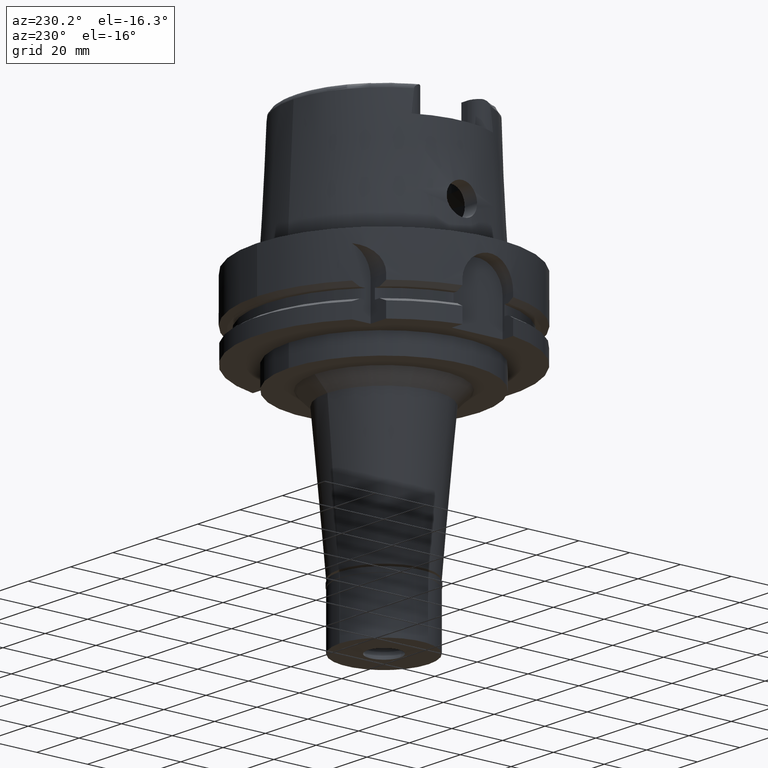
[diagram: clean part render]
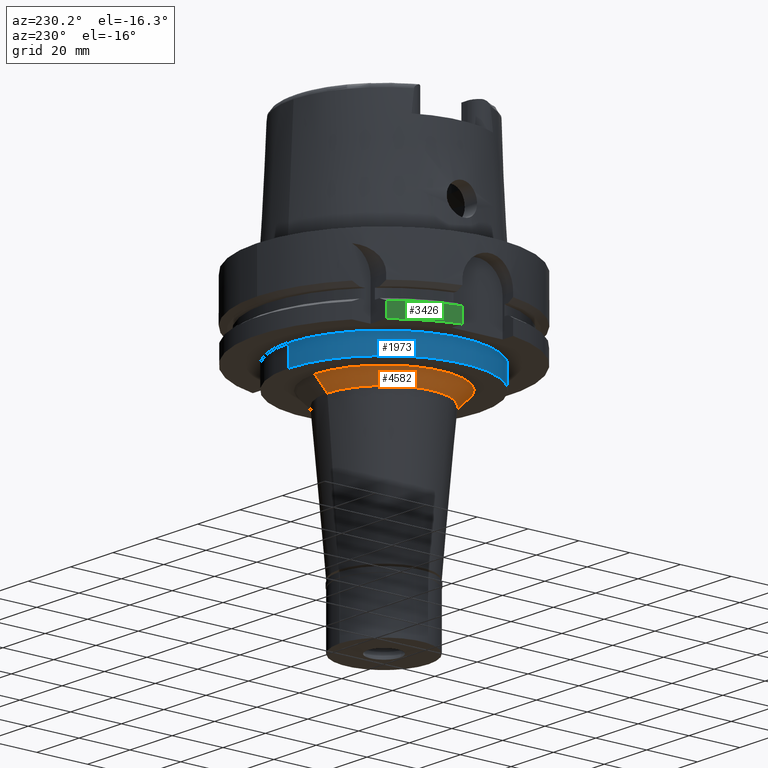
[diagram: same view with three faces highlighted in distinct colors, each labeled with its STEP entity id]
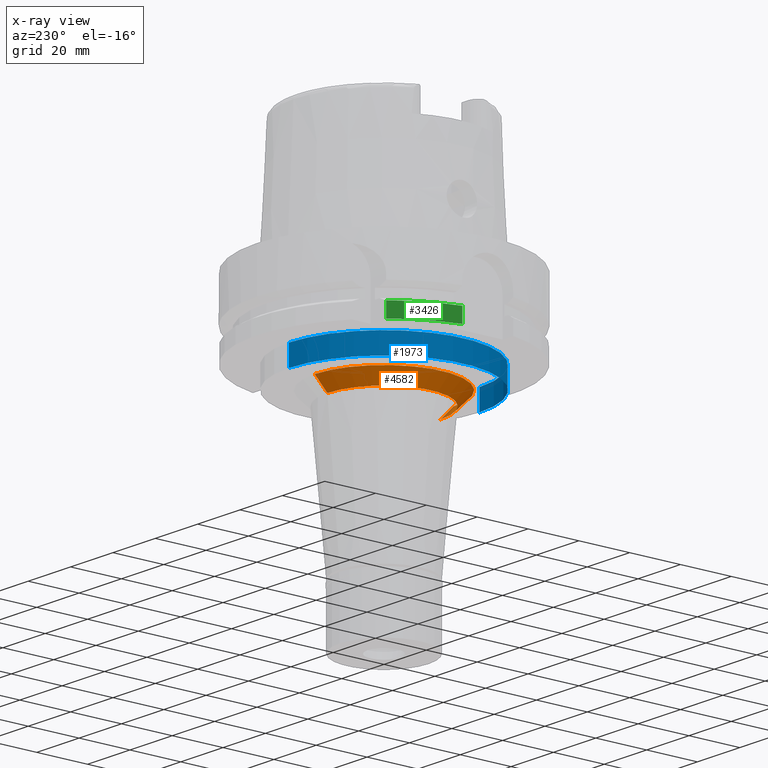
[diagram: x-ray of the same camera — body ghosted, the three highlighted faces saturated]
A machine part, auxiliary view with three faces highlighted in distinct colors.
The next image is the same camera in x-ray (body ghosted, the three faces saturated) — at least one of them is partly hidden behind the body in this view.
Their STEP definitions:

[orange] entity #4582 — the highlighted conical surface has half-angle 45 deg.
#98 = DIRECTION ( 'NONE',  ( 0.0000000000000000000, 0.7071067811867980391, -0.7071067811862969954 ) ) ;
#182 = ORIENTED_EDGE ( 'NONE', *, *, #2387, .F. ) ;
#212 = EDGE_CURVE ( 'NONE', #3439, #3825, #4492, .T. ) ;
#441 = LINE ( 'NONE', #471, #3196 ) ;
#469 = EDGE_CURVE ( 'NONE', #3825, #1617, #2747, .T. ) ;
#471 = CARTESIAN_POINT ( 'NONE',  ( 0.0000000000000000000, -27.28562989486999868, -37.00000000000000000 ) ) ;
#751 = CARTESIAN_POINT ( 'NONE',  ( 0.0000000000000000000, 27.28562989486999868, -37.00000000000000000 ) ) ;
#899 = AXIS2_PLACEMENT_3D ( 'NONE', #4873, #4391, #1416 ) ;
#919 = EDGE_CURVE ( 'NONE', #1463, #1617, #4118, .T. ) ;
#1094 = ORIENTED_EDGE ( 'NONE', *, *, #469, .T. ) ;
#1188 = CARTESIAN_POINT ( 'NONE',  ( 0.0000000000000000000, 0.0000000000000000000, -37.00000000000000000 ) ) ;
#1211 = CARTESIAN_POINT ( 'NONE',  ( 0.0000000000000000000, -22.28562989487000223, -42.00000000000000000 ) ) ;
#1416 = DIRECTION ( 'NONE',  ( 0.0000000000000000000, -1.000000000000000000, 0.0000000000000000000 ) ) ;
#1441 = AXIS2_PLACEMENT_3D ( 'NONE', #1188, #4654, #3889 ) ;
#1463 = VERTEX_POINT ( 'NONE', #1211 ) ;
#1617 = VERTEX_POINT ( 'NONE', #5252 ) ;
#1725 = ORIENTED_EDGE ( 'NONE', *, *, #212, .T. ) ;
#1750 = DIRECTION ( 'NONE',  ( 0.0000000000000000000, 0.0000000000000000000, 1.000000000000000000 ) ) ;
#2166 = CARTESIAN_POINT ( 'NONE',  ( 0.0000000000000000000, -27.28562989486999868, -37.00000000000000000 ) ) ;
#2387 = EDGE_CURVE ( 'NONE', #3439, #1463, #441, .T. ) ;
#2624 = VECTOR ( 'NONE', #3572, 1000.000000000000000 ) ;
#2747 = LINE ( 'NONE', #3497, #2624 ) ;
#3031 = ORIENTED_EDGE ( 'NONE', *, *, #919, .F. ) ;
#3196 = VECTOR ( 'NONE', #98, 1000.000000000000000 ) ;
#3439 = VERTEX_POINT ( 'NONE', #2166 ) ;
#3494 = DIRECTION ( 'NONE',  ( 0.0000000000000000000, 1.000000000000000000, 0.0000000000000000000 ) ) ;
#3497 = CARTESIAN_POINT ( 'NONE',  ( 0.0000000000000000000, 27.28562989486999868, -37.00000000000000000 ) ) ;
#3544 = CARTESIAN_POINT ( 'NONE',  ( 0.0000000000000000000, 0.0000000000000000000, -39.50000000000000000 ) ) ;
#3572 = DIRECTION ( 'NONE',  ( 0.0000000000000000000, -0.7071067811867980391, -0.7071067811862969954 ) ) ;
#3825 = VERTEX_POINT ( 'NONE', #751 ) ;
#3889 = DIRECTION ( 'NONE',  ( 0.0000000000000000000, -1.000000000000000000, 0.0000000000000000000 ) ) ;
#4118 = CIRCLE ( 'NONE', #899, 22.28562989487000223 ) ;
#4320 = EDGE_LOOP ( 'NONE', ( #3031, #182, #1725, #1094 ) ) ;
#4391 = DIRECTION ( 'NONE',  ( 0.0000000000000000000, 0.0000000000000000000, -1.000000000000000000 ) ) ;
#4421 = CONICAL_SURFACE ( 'NONE', #4619, 24.78562989487000223, 0.7853981633972997312 ) ;
#4492 = CIRCLE ( 'NONE', #1441, 27.28562989486999868 ) ;
#4582 = ADVANCED_FACE ( 'NONE', ( #4733 ), #4421, .T. ) ;
#4619 = AXIS2_PLACEMENT_3D ( 'NONE', #3544, #1750, #3494 ) ;
#4654 = DIRECTION ( 'NONE',  ( 0.0000000000000000000, 0.0000000000000000000, -1.000000000000000000 ) ) ;
#4733 = FACE_OUTER_BOUND ( 'NONE', #4320, .T. ) ;
#4873 = CARTESIAN_POINT ( 'NONE',  ( 0.0000000000000000000, 0.0000000000000000000, -42.00000000000000000 ) ) ;
#5252 = CARTESIAN_POINT ( 'NONE',  ( 0.0000000000000000000, 22.28562989487000223, -42.00000000000000000 ) ) ;

[blue] entity #1973 — the highlighted cylindrical surface (partial cylindrical patch) has radius 37.5 mm, axis along (0, 0, 1).
#86 = VECTOR ( 'NONE', #299, 1000.000000000000000 ) ;
#299 = DIRECTION ( 'NONE',  ( 0.0000000000000000000, 0.0000000000000000000, -1.000000000000000000 ) ) ;
#438 = VERTEX_POINT ( 'NONE', #2263 ) ;
#476 = FACE_OUTER_BOUND ( 'NONE', #2490, .T. ) ;
#507 = CARTESIAN_POINT ( 'NONE',  ( 0.0000000000000000000, 37.50000000000000000, -29.00000000000000000 ) ) ;
#754 = CARTESIAN_POINT ( 'NONE',  ( 0.0000000000000000000, -37.50000000000000000, -29.00000000000000000 ) ) ;
#778 = AXIS2_PLACEMENT_3D ( 'NONE', #1671, #2613, #3448 ) ;
#915 = ORIENTED_EDGE ( 'NONE', *, *, #2891, .T. ) ;
#997 = AXIS2_PLACEMENT_3D ( 'NONE', #3900, #2171, #3457 ) ;
#1015 = VERTEX_POINT ( 'NONE', #1389 ) ;
#1076 = EDGE_CURVE ( 'NONE', #4695, #1015, #1117, .T. ) ;
#1117 = LINE ( 'NONE', #754, #86 ) ;
#1260 = ORIENTED_EDGE ( 'NONE', *, *, #5377, .T. ) ;
#1389 = CARTESIAN_POINT ( 'NONE',  ( 0.0000000000000000000, -37.50000000000000000, -37.00000000000000000 ) ) ;
#1671 = CARTESIAN_POINT ( 'NONE',  ( 0.0000000000000000000, 0.0000000000000000000, -37.00000000000000000 ) ) ;
#1937 = VERTEX_POINT ( 'NONE', #507 ) ;
#1973 = ADVANCED_FACE ( 'NONE', ( #476 ), #2598, .T. ) ;
#2150 = ORIENTED_EDGE ( 'NONE', *, *, #2997, .T. ) ;
#2171 = DIRECTION ( 'NONE',  ( 0.0000000000000000000, 0.0000000000000000000, 1.000000000000000000 ) ) ;
#2263 = CARTESIAN_POINT ( 'NONE',  ( 0.0000000000000000000, 37.50000000000000000, -37.00000000000000000 ) ) ;
#2490 = EDGE_LOOP ( 'NONE', ( #915, #3025, #2150, #1260 ) ) ;
#2598 = CYLINDRICAL_SURFACE ( 'NONE', #997, 37.50000000000000000 ) ;
#2613 = DIRECTION ( 'NONE',  ( 0.0000000000000000000, 0.0000000000000000000, 1.000000000000000000 ) ) ;
#2669 = AXIS2_PLACEMENT_3D ( 'NONE', #3069, #4765, #4281 ) ;
#2891 = EDGE_CURVE ( 'NONE', #438, #1015, #4267, .T. ) ;
#2969 = LINE ( 'NONE', #4207, #3110 ) ;
#2997 = EDGE_CURVE ( 'NONE', #4695, #1937, #4541, .T. ) ;
#3025 = ORIENTED_EDGE ( 'NONE', *, *, #1076, .F. ) ;
#3063 = CARTESIAN_POINT ( 'NONE',  ( 0.0000000000000000000, -37.50000000000000000, -29.00000000000000000 ) ) ;
#3069 = CARTESIAN_POINT ( 'NONE',  ( 0.0000000000000000000, 0.0000000000000000000, -29.00000000000000000 ) ) ;
#3110 = VECTOR ( 'NONE', #3795, 1000.000000000000000 ) ;
#3448 = DIRECTION ( 'NONE',  ( 0.0000000000000000000, 1.000000000000000000, 0.0000000000000000000 ) ) ;
#3457 = DIRECTION ( 'NONE',  ( 0.0000000000000000000, 1.000000000000000000, 0.0000000000000000000 ) ) ;
#3795 = DIRECTION ( 'NONE',  ( 0.0000000000000000000, 0.0000000000000000000, -1.000000000000000000 ) ) ;
#3900 = CARTESIAN_POINT ( 'NONE',  ( 0.0000000000000000000, 0.0000000000000000000, -121.4650000000000034 ) ) ;
#4207 = CARTESIAN_POINT ( 'NONE',  ( 0.0000000000000000000, 37.50000000000000000, -29.00000000000000000 ) ) ;
#4267 = CIRCLE ( 'NONE', #778, 37.50000000000000000 ) ;
#4281 = DIRECTION ( 'NONE',  ( 0.0000000000000000000, -1.000000000000000000, 0.0000000000000000000 ) ) ;
#4541 = CIRCLE ( 'NONE', #2669, 37.50000000000000000 ) ;
#4695 = VERTEX_POINT ( 'NONE', #3063 ) ;
#4765 = DIRECTION ( 'NONE',  ( 0.0000000000000000000, 0.0000000000000000000, -1.000000000000000000 ) ) ;
#5377 = EDGE_CURVE ( 'NONE', #1937, #438, #2969, .T. ) ;

[green] entity #3426 — the highlighted cylindrical surface (partial cylindrical patch) has radius 50 mm, axis along (0, 0, 1).
#68 = VERTEX_POINT ( 'NONE', #4937 ) ;
#133 = DIRECTION ( 'NONE',  ( -0.9797958971132723072, 0.1999999999999946265, 0.0000000000000000000 ) ) ;
#199 = ORIENTED_EDGE ( 'NONE', *, *, #4220, .T. ) ;
#300 = LINE ( 'NONE', #790, #5247 ) ;
#302 = CYLINDRICAL_SURFACE ( 'NONE', #1399, 50.00000000000000000 ) ;
#380 = EDGE_CURVE ( 'NONE', #3843, #1520, #2666, .T. ) ;
#568 = CARTESIAN_POINT ( 'NONE',  ( -38.82975663071000128, 31.50000000000000000, -29.00000000000000000 ) ) ;
#666 = ORIENTED_EDGE ( 'NONE', *, *, #2257, .F. ) ;
#733 = FACE_OUTER_BOUND ( 'NONE', #2473, .T. ) ;
#790 = CARTESIAN_POINT ( 'NONE',  ( -48.98979485565999425, 10.00000000000000000, -23.24759526419000011 ) ) ;
#827 = ORIENTED_EDGE ( 'NONE', *, *, #380, .F. ) ;
#918 = DIRECTION ( 'NONE',  ( -1.164835666499979694E-07, -1.435883620958975412E-07, 0.9999999999999827915 ) ) ;
#1009 = DIRECTION ( 'NONE',  ( 0.0000000000000000000, 0.0000000000000000000, -1.000000000000000000 ) ) ;
#1205 = CIRCLE ( 'NONE', #4530, 49.99999999999997868 ) ;
#1399 = AXIS2_PLACEMENT_3D ( 'NONE', #3871, #2221, #2193 ) ;
#1520 = VERTEX_POINT ( 'NONE', #1607 ) ;
#1607 = CARTESIAN_POINT ( 'NONE',  ( -38.82975730076999810, 31.49999917402000094, -23.24759226099000031 ) ) ;
#1637 = CARTESIAN_POINT ( 'NONE',  ( 0.0000000000000000000, 0.0000000000000000000, -29.00000000000000000 ) ) ;
#1667 = DIRECTION ( 'NONE',  ( 0.0000000000000000000, 0.0000000000000000000, 1.000000000000000000 ) ) ;
#1826 = CARTESIAN_POINT ( 'NONE',  ( 0.0000000000000000000, 0.0000000000000000000, -23.24759526419000011 ) ) ;
#2046 = CIRCLE ( 'NONE', #2766, 50.00000000000000711 ) ;
#2193 = DIRECTION ( 'NONE',  ( 0.0000000000000000000, 1.000000000000000000, 0.0000000000000000000 ) ) ;
#2221 = DIRECTION ( 'NONE',  ( 0.0000000000000000000, 0.0000000000000000000, 1.000000000000000000 ) ) ;
#2257 = EDGE_CURVE ( 'NONE', #68, #4188, #300, .T. ) ;
#2447 = ORIENTED_EDGE ( 'NONE', *, *, #5221, .T. ) ;
#2449 = DIRECTION ( 'NONE',  ( -8.399427413532000465E-14, 0.0000000000000000000, -1.000000000000000000 ) ) ;
#2473 = EDGE_LOOP ( 'NONE', ( #199, #666, #2447, #827 ) ) ;
#2666 = LINE ( 'NONE', #568, #4309 ) ;
#2766 = AXIS2_PLACEMENT_3D ( 'NONE', #1637, #1667, #3836 ) ;
#3290 = CARTESIAN_POINT ( 'NONE',  ( -38.82975663071000128, 31.50000000000000000, -29.00000000000000000 ) ) ;
#3426 = ADVANCED_FACE ( 'NONE', ( #733 ), #302, .T. ) ;
#3836 = DIRECTION ( 'NONE',  ( -0.7765951326141738997, 0.6299999999999789102, 0.0000000000000000000 ) ) ;
#3843 = VERTEX_POINT ( 'NONE', #3290 ) ;
#3871 = CARTESIAN_POINT ( 'NONE',  ( 0.0000000000000000000, 0.0000000000000000000, -121.4650000000000034 ) ) ;
#4188 = VERTEX_POINT ( 'NONE', #5378 ) ;
#4220 = EDGE_CURVE ( 'NONE', #3843, #4188, #2046, .T. ) ;
#4309 = VECTOR ( 'NONE', #918, 1000.000000000000227 ) ;
#4530 = AXIS2_PLACEMENT_3D ( 'NONE', #1826, #1009, #133 ) ;
#4937 = CARTESIAN_POINT ( 'NONE',  ( -48.98979485565999425, 10.00000000000000000, -23.24759526419000011 ) ) ;
#5221 = EDGE_CURVE ( 'NONE', #68, #1520, #1205, .T. ) ;
#5247 = VECTOR ( 'NONE', #2449, 1000.000000000000000 ) ;
#5378 = CARTESIAN_POINT ( 'NONE',  ( -48.98979485565999425, 10.00000000000000000, -29.00000000000000000 ) ) ;